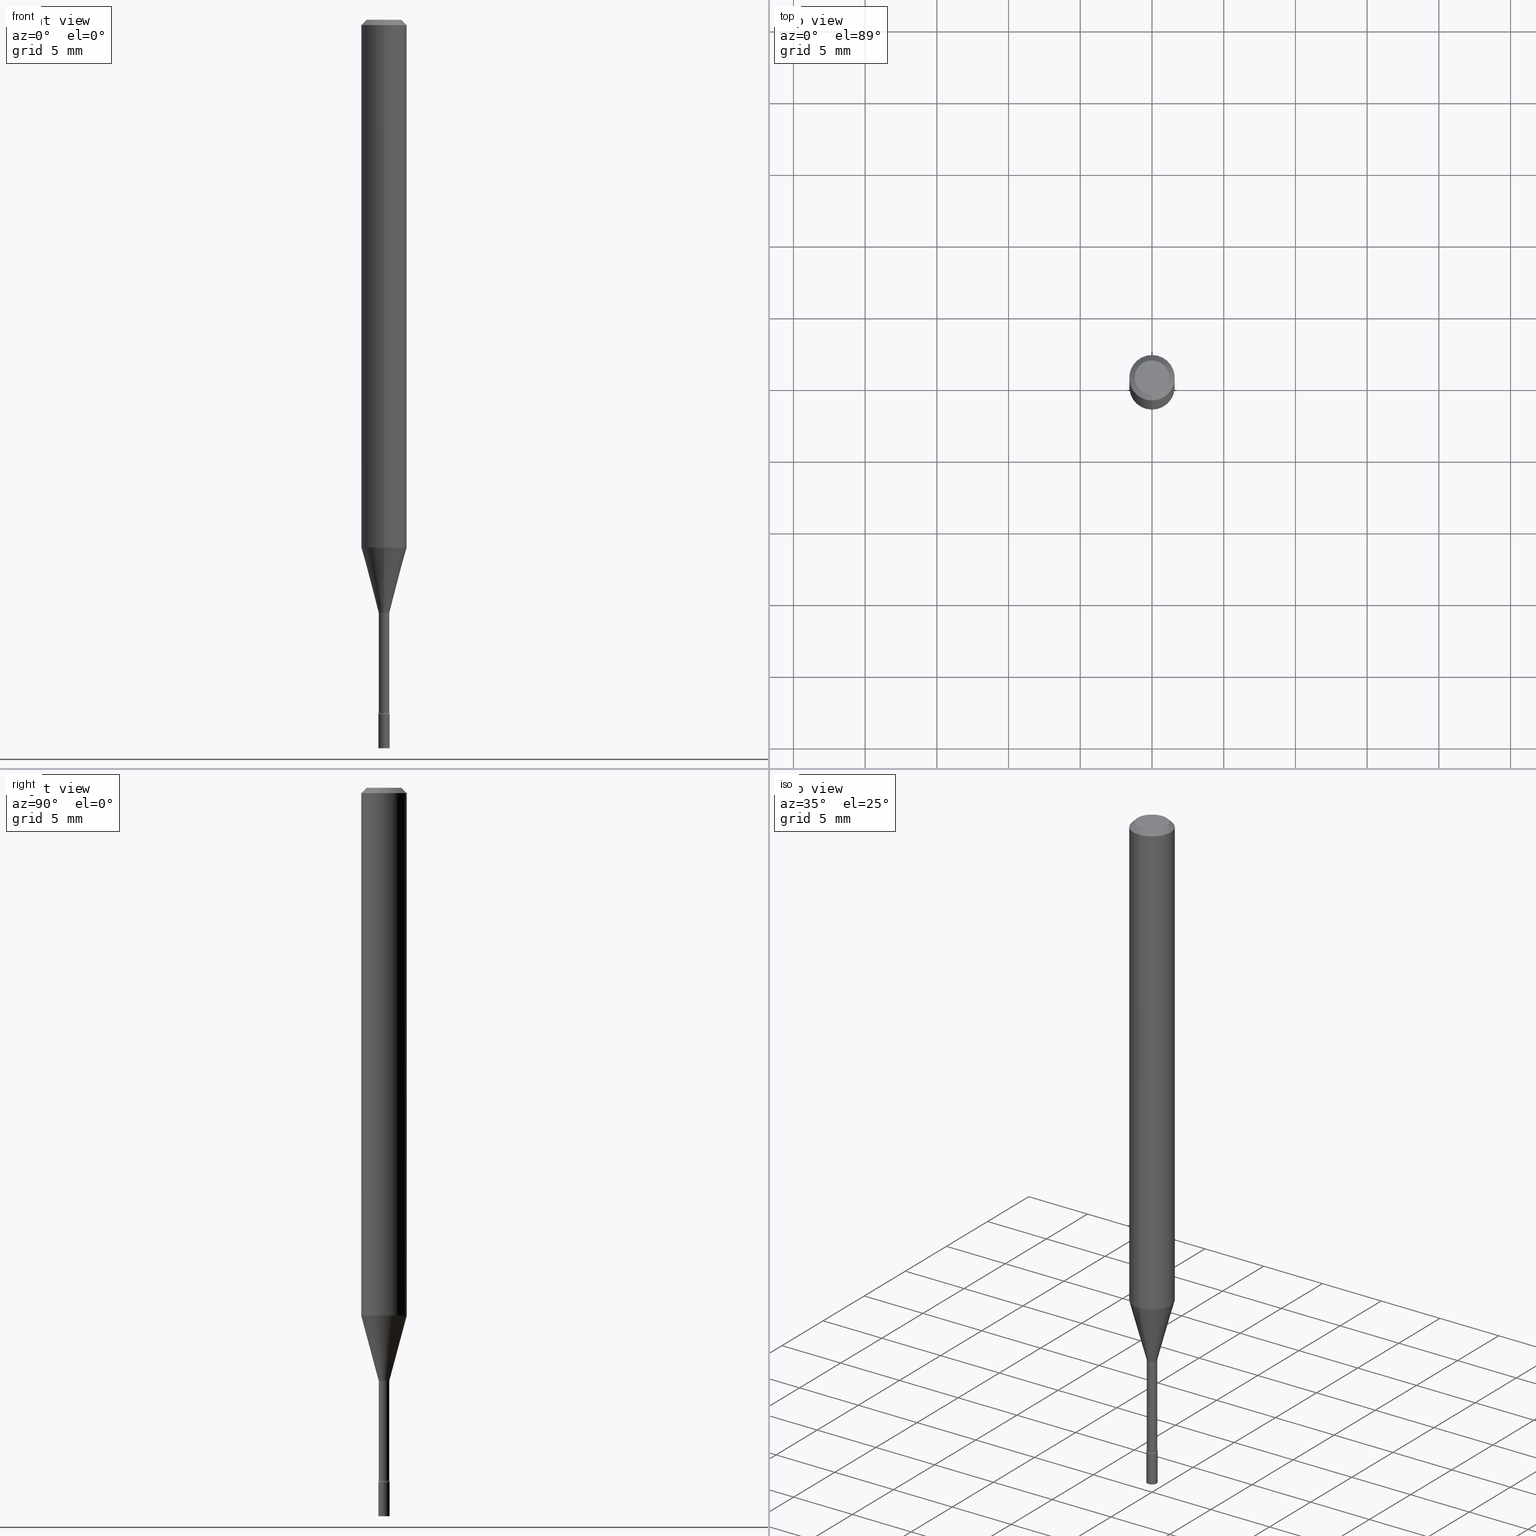
[diagram: canonical four-view strip — front | top / right | iso, engineering-drawing reading convention]
A machine part, canonical four-view strip (front | top / right | iso — engineering-drawing reading convention). The complete STEP part file that produces these views, byte-faithful:
ISO-10303-21;
HEADER;
FILE_DESCRIPTION (( 'STEP AP203' ),
    '1' );
FILE_NAME ('03486.STEP',
    '2024-03-08T21:30:43',
    ( '' ),
    ( '' ),
    'SwSTEP 2.0',
    'SolidWorks 2023',
    '' );
FILE_SCHEMA (( 'CONFIG_CONTROL_DESIGN' ));
ENDSEC;

DATA;
#1 = ORIENTED_EDGE ( 'NONE', *, *, #448, .T. ) ;
#2 = ADVANCED_FACE ( 'NONE', ( #519 ), #515, .T. ) ;
#3 = DATE_AND_TIME ( #452, #24 ) ;
#4 = DIRECTION ( 'NONE',  ( 1.000000000000000000, -7.105427357601001070E-15, 4.926315678976482219E-29 ) ) ;
#5 = DIRECTION ( 'NONE',  ( -2.445459087978587807E-29, 3.491495255868048836E-15, 1.000000000000000000 ) ) ;
#6 = AXIS2_PLACEMENT_3D ( 'NONE', #301, #458, #495 ) ;
#7 = AXIS2_PLACEMENT_3D ( 'NONE', #512, #317, #391 ) ;
#8 = PERSON_AND_ORGANIZATION_ROLE ( 'classification_officer' ) ;
#9 = DIRECTION ( 'NONE',  ( -1.000000000000000000, 6.982962677686265922E-15, -4.876176775795935793E-29 ) ) ;
#10 = COORDINATED_UNIVERSAL_TIME_OFFSET ( 5, 0, .BEHIND. ) ;
#11 = CIRCLE ( 'NONE', #241, 0.01455000000000001951 ) ;
#12 = CARTESIAN_POINT ( 'NONE',  ( 1.067590460480017694E-16, 0.01454999999999338246, -1.901746667724196316 ) ) ;
#13 = ADVANCED_FACE ( 'NONE', ( #232 ), #274, .T. ) ;
#14 = FACE_OUTER_BOUND ( 'NONE', #407, .T. ) ;
#15 = TOROIDAL_SURFACE ( 'NONE', #118, 0.02955000000000003804, 0.01500000000000001853 ) ;
#16 = DIRECTION ( 'NONE',  ( -2.445468806185136597E-29, 3.491481338843145583E-15, 1.000000000000000000 ) ) ;
#17 = ADVANCED_FACE ( 'NONE', ( #200 ), #240, .T. ) ;
#18 = DIRECTION ( 'NONE',  ( -2.445459087978587807E-29, 3.491495255868049230E-15, 1.000000000000000000 ) ) ;
#19 = VERTEX_POINT ( 'NONE', #37 ) ;
#20 = AXIS2_PLACEMENT_3D ( 'NONE', #377, #283, #122 ) ;
#21 = CARTESIAN_POINT ( 'NONE',  ( 4.663509013395054719E-29, -6.658254913173878091E-15, -1.906999999999999806 ) ) ;
#22 = CARTESIAN_POINT ( 'NONE',  ( 0.000000000000000000, 0.000000000000000000, 0.000000000000000000 ) ) ;
#23 = ADVANCED_FACE ( 'NONE', ( #308 ), #300, .F. ) ;
#24 = LOCAL_TIME ( 16, 30, 43.00000000000000000, #321 ) ;
#25 = ADVANCED_BREP_SHAPE_REPRESENTATION ( '03486', ( #151, #326, #86 ), #347 ) ;
#26 = DIRECTION ( 'NONE',  ( 1.000000000000000000, -6.982962677686238312E-15, 0.000000000000000000 ) ) ;
#27 = FACE_OUTER_BOUND ( 'NONE', #387, .T. ) ;
#28 = CC_DESIGN_PERSON_AND_ORGANIZATION_ASSIGNMENT ( #121, #125, ( #34 ) ) ;
#29 = AXIS2_PLACEMENT_3D ( 'NONE', #295, #98, #419 ) ;
#30 = PERSON_AND_ORGANIZATION_ROLE ( 'design_owner' ) ;
#31 = CYLINDRICAL_SURFACE ( 'NONE', #60, 0.06250000000000000000 ) ;
#32 = ORIENTED_EDGE ( 'NONE', *, *, #179, .T. ) ;
#33 = VERTEX_POINT ( 'NONE', #268 ) ;
#34 = PRODUCT_DEFINITION_FORMATION_WITH_SPECIFIED_SOURCE ( 'ANY', '', #493, .NOT_KNOWN. ) ;
#35 = CC_DESIGN_DATE_AND_TIME_ASSIGNMENT ( #449, #244, ( #63 ) ) ;
#36 = CARTESIAN_POINT ( 'NONE',  ( 3.986036657179344057E-29, -5.691049237614427224E-15, -1.629974787463811081 ) ) ;
#37 = CARTESIAN_POINT ( 'NONE',  ( 2.755524256971660979E-16, 0.01506111260565830626, -1.626092501787273159 ) ) ;
#38 = APPROVAL_STATUS ( 'not_yet_approved' ) ;
#39 = ORIENTED_EDGE ( 'NONE', *, *, #501, .F. ) ;
#40 = AXIS2_PLACEMENT_3D ( 'NONE', #318, #451, #80 ) ;
#41 = EDGE_CURVE ( 'NONE', #223, #259, #72, .T. ) ;
#42 = DIRECTION ( 'NONE',  ( 6.982962677686265922E-15, 1.000000000000000000, -3.483106191921935554E-15 ) ) ;
#43 = CARTESIAN_POINT ( 'NONE',  ( 4.650662153186051955E-29, -6.639913001566167862E-15, -1.901746667724196316 ) ) ;
#44 = EDGE_LOOP ( 'NONE', ( #292, #234, #1, #177 ) ) ;
#45 = PERSON_AND_ORGANIZATION_ROLE ( 'creator' ) ;
#46 = FACE_OUTER_BOUND ( 'NONE', #350, .T. ) ;
#47 = AXIS2_PLACEMENT_3D ( 'NONE', #77, #82, #42 ) ;
#48 = DIRECTION ( 'NONE',  ( 2.445459087978587807E-29, -3.491495255868048836E-15, -1.000000000000000000 ) ) ;
#49 = AXIS2_PLACEMENT_3D ( 'NONE', #478, #470, #192 ) ;
#50 = CARTESIAN_POINT ( 'NONE',  ( 1.101341240428622064E-16, 0.01549999999999334896, -1.906999999999999806 ) ) ;
#51 = CIRCLE ( 'NONE', #6, 0.06250000000000000000 ) ;
#52 = CARTESIAN_POINT ( 'NONE',  ( 0.01549999999999999989, -6.766490834678014468E-15, -1.906999999999999806 ) ) ;
#53 = ORIENTED_EDGE ( 'NONE', *, *, #310, .F. ) ;
#54 = ORIENTED_EDGE ( 'NONE', *, *, #376, .T. ) ;
#55 = DIRECTION ( 'NONE',  ( -6.982962677686266711E-15, -1.000000000000000000, 3.491495255868049625E-15 ) ) ;
#56 = ORIENTED_EDGE ( 'NONE', *, *, #372, .F. ) ;
#57 = APPROVAL_PERSON_ORGANIZATION ( #212, #158, #332 ) ;
#58 = DIRECTION ( 'NONE',  ( -6.982962677686262766E-15, -1.000000000000000000, 0.000000000000000000 ) ) ;
#59 = EDGE_LOOP ( 'NONE', ( #496, #107, #359, #155 ) ) ;
#60 = AXIS2_PLACEMENT_3D ( 'NONE', #191, #373, #453 ) ;
#61 = EDGE_CURVE ( 'NONE', #460, #259, #282, .T. ) ;
#62 = DIRECTION ( 'NONE',  ( -2.445459087978587807E-29, 3.491495255868049230E-15, 1.000000000000000000 ) ) ;
#63 = PRODUCT_DEFINITION ( 'UNKNOWN', '', #34, #454 ) ;
#64 = VERTEX_POINT ( 'NONE', #238 ) ;
#65 = DIRECTION ( 'NONE',  ( -2.445468806185136597E-29, 3.491481338843145583E-15, 1.000000000000000000 ) ) ;
#66 = EDGE_CURVE ( 'NONE', #479, #176, #228, .T. ) ;
#67 = CIRCLE ( 'NONE', #137, 0.01455000000000001951 ) ;
#68 = DIRECTION ( 'NONE',  ( -2.445459087978587807E-29, 3.491495255868049230E-15, 1.000000000000000000 ) ) ;
#69 = CARTESIAN_POINT ( 'NONE',  ( 0.000000000000000000, 0.000000000000000000, 0.000000000000000000 ) ) ;
#70 =( NAMED_UNIT ( * ) PLANE_ANGLE_UNIT ( ) SI_UNIT ( $, .RADIAN. ) );
#71 = EDGE_LOOP ( 'NONE', ( #198, #423, #488, #135 ) ) ;
#72 = LINE ( 'NONE', #434, #513 ) ;
#73 = ADVANCED_FACE ( 'NONE', ( #395 ), #243, .F. ) ;
#74 = CARTESIAN_POINT ( 'NONE',  ( -1.016021069602953434E-16, -0.01455000000000569380, -1.629974787463811081 ) ) ;
#75 = AXIS2_PLACEMENT_3D ( 'NONE', #463, #260, #94 ) ;
#76 = AXIS2_PLACEMENT_3D ( 'NONE', #188, #472, #276 ) ;
#77 = CARTESIAN_POINT ( 'NONE',  ( 3.668188631967889173E-31, -5.237242883802084840E-17, -0.01500000000000003067 ) ) ;
#78 = ORIENTED_EDGE ( 'NONE', *, *, #400, .F. ) ;
#79 = COORDINATED_UNIVERSAL_TIME_OFFSET ( 5, 0, .BEHIND. ) ;
#80 = DIRECTION ( 'NONE',  ( -6.982962677686266711E-15, -1.000000000000000000, 3.491495255868048836E-15 ) ) ;
#81 = ADVANCED_FACE ( 'NONE', ( #27 ), #31, .T. ) ;
#82 = DIRECTION ( 'NONE',  ( 2.445459087978587807E-29, -3.491495255868049230E-15, -1.000000000000000000 ) ) ;
#83 = AXIS2_PLACEMENT_3D ( 'NONE', #21, #336, #261 ) ;
#84 = CC_DESIGN_PERSON_AND_ORGANIZATION_ASSIGNMENT ( #403, #8, ( #150 ) ) ;
#85 = FACE_OUTER_BOUND ( 'NONE', #461, .T. ) ;
#86 = AXIS2_PLACEMENT_3D ( 'NONE', #22, #433, #184 ) ;
#87 = DIRECTION ( 'NONE',  ( -1.000000000000000000, 6.982962677686265922E-15, -4.883557194083112340E-29 ) ) ;
#88 = EDGE_LOOP ( 'NONE', ( #499, #325, #299, #302 ) ) ;
#89 = DIRECTION ( 'NONE',  ( 1.839019923739597554E-15, 0.2588190451025245697, 0.9659258262890670910 ) ) ;
#90 = ORIENTED_EDGE ( 'NONE', *, *, #517, .T. ) ;
#91 = EDGE_LOOP ( 'NONE', ( #500, #201, #100, #132 ) ) ;
#92 = CIRCLE ( 'NONE', #335, 0.04749999999999999362 ) ;
#93 = ORIENTED_EDGE ( 'NONE', *, *, #469, .T. ) ;
#94 = DIRECTION ( 'NONE',  ( -6.982962677686265922E-15, -1.000000000000000000, 3.491495255868048836E-15 ) ) ;
#95 = ORIENTED_EDGE ( 'NONE', *, *, #330, .T. ) ;
#96 = DIRECTION ( 'NONE',  ( 1.000000000000000000, -6.982962677686266711E-15, 4.876176775795935232E-29 ) ) ;
#97 = VERTEX_POINT ( 'NONE', #12 ) ;
#98 = DIRECTION ( 'NONE',  ( 1.000000000000000000, -7.105427357601001070E-15, 4.926315678976482219E-29 ) ) ;
#99 = DIRECTION ( 'NONE',  ( -2.445468806185136597E-29, 3.491481338843145583E-15, 1.000000000000000000 ) ) ;
#100 = ORIENTED_EDGE ( 'NONE', *, *, #186, .T. ) ;
#101 = ORIENTED_EDGE ( 'NONE', *, *, #66, .T. ) ;
#102 = PERSON_AND_ORGANIZATION ( #219, #319 ) ;
#103 = ADVANCED_FACE ( 'NONE', ( #246 ), #172, .T. ) ;
#104 = ORIENTED_EDGE ( 'NONE', *, *, #442, .T. ) ;
#105 = AXIS2_PLACEMENT_3D ( 'NONE', #36, #187, #516 ) ;
#106 = LINE ( 'NONE', #394, #333 ) ;
#107 = ORIENTED_EDGE ( 'NONE', *, *, #140, .T. ) ;
#108 = CC_DESIGN_DATE_AND_TIME_ASSIGNMENT ( #127, #284, ( #150 ) ) ;
#109 = AXIS2_PLACEMENT_3D ( 'NONE', #415, #426, #136 ) ;
#110 = ORIENTED_EDGE ( 'NONE', *, *, #41, .F. ) ;
#111 = ORIENTED_EDGE ( 'NONE', *, *, #477, .F. ) ;
#112 = DIRECTION ( 'NONE',  ( -2.445468806185136597E-29, 3.491481338843145583E-15, 1.000000000000000000 ) ) ;
#113 = DIRECTION ( 'NONE',  ( -6.982962677686265922E-15, -1.000000000000000000, 3.491495255868049230E-15 ) ) ;
#114 = EDGE_CURVE ( 'NONE', #97, #460, #457, .T. ) ;
#115 = DIRECTION ( 'NONE',  ( -2.445459087978587807E-29, 3.491495255868049230E-15, 1.000000000000000000 ) ) ;
#116 = APPROVAL_STATUS ( 'not_yet_approved' ) ;
#117 = FACE_OUTER_BOUND ( 'NONE', #369, .T. ) ;
#118 = AXIS2_PLACEMENT_3D ( 'NONE', #43, #286, #444 ) ;
#119 = ORIENTED_EDGE ( 'NONE', *, *, #363, .T. ) ;
#120 = CLOSED_SHELL ( 'NONE', ( #73, #257, #23, #156, #17, #174, #103, #81, #263, #163, #352, #216, #13, #271 ) ) ;
#121 = PERSON_AND_ORGANIZATION ( #219, #319 ) ;
#122 = DIRECTION ( 'NONE',  ( -6.982962677686266711E-15, -1.000000000000000000, 0.000000000000000000 ) ) ;
#123 = EDGE_CURVE ( 'NONE', #97, #223, #67, .T. ) ;
#124 = ORIENTED_EDGE ( 'NONE', *, *, #363, .F. ) ;
#125 = PERSON_AND_ORGANIZATION_ROLE ( 'design_supplier' ) ;
#126 = DIRECTION ( 'NONE',  ( 2.445459087978587807E-29, -3.491495255868049230E-15, -1.000000000000000000 ) ) ;
#127 = DATE_AND_TIME ( #364, #450 ) ;
#128 = CARTESIAN_POINT ( 'NONE',  ( 1.033839680530946418E-16, 0.01455000000000001084, -5.080125597288014936E-17 ) ) ;
#129 = AXIS2_PLACEMENT_3D ( 'NONE', #406, #115, #206 ) ;
#130 = LINE ( 'NONE', #345, #182 ) ;
#131 = ORIENTED_EDGE ( 'NONE', *, *, #140, .F. ) ;
#132 = ORIENTED_EDGE ( 'NONE', *, *, #346, .F. ) ;
#133 = CARTESIAN_POINT ( 'NONE',  ( 3.976542686389524880E-29, -5.677494255592872266E-15, -1.626092501787273159 ) ) ;
#134 = ORIENTED_EDGE ( 'NONE', *, *, #439, .T. ) ;
#135 = ORIENTED_EDGE ( 'NONE', *, *, #465, .T. ) ;
#136 = DIRECTION ( 'NONE',  ( -6.982962677686265922E-15, -1.000000000000000000, 3.491495255868049230E-15 ) ) ;
#137 = AXIS2_PLACEMENT_3D ( 'NONE', #250, #288, #165 ) ;
#138 = DIRECTION ( 'NONE',  ( -2.445459087978587807E-29, 3.491495255868048836E-15, 1.000000000000000000 ) ) ;
#139 = ORIENTED_EDGE ( 'NONE', *, *, #114, .T. ) ;
#140 = EDGE_CURVE ( 'NONE', #19, #460, #272, .T. ) ;
#141 = APPLICATION_CONTEXT ( 'configuration controlled 3d designs of mechanical parts and assemblies' ) ;
#142 = ORIENTED_EDGE ( 'NONE', *, *, #179, .F. ) ;
#143 = CARTESIAN_POINT ( 'NONE',  ( 4.663490480775166540E-29, -6.658281452940369696E-15, -1.906999999999999806 ) ) ;
#144 = CC_DESIGN_SECURITY_CLASSIFICATION ( #150, ( #34 ) ) ;
#145 = CC_DESIGN_PERSON_AND_ORGANIZATION_ASSIGNMENT ( #102, #30, ( #493 ) ) ;
#146 = CIRCLE ( 'NONE', #83, 0.01549999999999999989 ) ;
#147 = VERTEX_POINT ( 'NONE', #245 ) ;
#148 = MECHANICAL_CONTEXT ( 'NONE', #141, 'mechanical' ) ;
#149 = DIRECTION ( 'NONE',  ( -2.445459087978587807E-29, 3.491495255868049230E-15, 1.000000000000000000 ) ) ;
#150 = SECURITY_CLASSIFICATION ( '', '', #166 ) ;
#151 = MANIFOLD_SOLID_BREP ( 'Body-Move/Copy2[1]', #229 ) ;
#152 = DIRECTION ( 'NONE',  ( -6.982962677686265922E-15, -1.000000000000000000, 0.000000000000000000 ) ) ;
#153 = VERTEX_POINT ( 'NONE', #210 ) ;
#154 = VECTOR ( 'NONE', #138, 39.37007874015748143 ) ;
#155 = ORIENTED_EDGE ( 'NONE', *, *, #330, .F. ) ;
#156 = ADVANCED_FACE ( 'NONE', ( #481 ), #370, .T. ) ;
#157 = CARTESIAN_POINT ( 'NONE',  ( 4.890937612370273194E-29, -6.982962677686291165E-15, -2.000000000000000000 ) ) ;
#158 = APPROVAL ( #38, 'UNSPECIFIED' ) ;
#159 = CC_DESIGN_APPROVAL ( #233, ( #34 ) ) ;
#160 = SHAPE_DEFINITION_REPRESENTATION ( #202, #25 ) ;
#161 = FACE_OUTER_BOUND ( 'NONE', #169, .T. ) ;
#162 = COORDINATED_UNIVERSAL_TIME_OFFSET ( 5, 0, .BEHIND. ) ;
#163 = ADVANCED_FACE ( 'NONE', ( #161 ), #492, .F. ) ;
#164 = CIRCLE ( 'NONE', #456, 0.04749999999999999362 ) ;
#165 = DIRECTION ( 'NONE',  ( -6.982962677686265922E-15, -1.000000000000000000, 0.000000000000000000 ) ) ;
#166 = SECURITY_CLASSIFICATION_LEVEL ( 'unclassified' ) ;
#167 = CYLINDRICAL_SURFACE ( 'NONE', #40, 0.01455000000000001084 ) ;
#168 = ORIENTED_EDGE ( 'NONE', *, *, #289, .F. ) ;
#169 = EDGE_LOOP ( 'NONE', ( #134, #337 ) ) ;
#170 = CARTESIAN_POINT ( 'NONE',  ( 3.543588001027327383E-29, -5.059344789351957682E-15, -1.449048163777072684 ) ) ;
#171 = DIRECTION ( 'NONE',  ( -2.445459087978587807E-29, 3.491495255868049230E-15, 1.000000000000000000 ) ) ;
#172 = CONICAL_SURFACE ( 'NONE', #20, 0.01506111260566398227, 0.2617993877991499074 ) ;
#173 = AXIS2_PLACEMENT_3D ( 'NONE', #231, #99, #307 ) ;
#174 = ADVANCED_FACE ( 'NONE', ( #85 ), #471, .T. ) ;
#175 = CARTESIAN_POINT ( 'NONE',  ( 3.668188631967889173E-31, -5.237242883802084840E-17, -0.01500000000000003067 ) ) ;
#176 = VERTEX_POINT ( 'NONE', #404 ) ;
#177 = ORIENTED_EDGE ( 'NONE', *, *, #467, .F. ) ;
#178 = DIRECTION ( 'NONE',  ( -6.982962677686265922E-15, -1.000000000000000000, 0.000000000000000000 ) ) ;
#179 = EDGE_CURVE ( 'NONE', #33, #19, #402, .T. ) ;
#180 = LINE ( 'NONE', #498, #220 ) ;
#181 = ORIENTED_EDGE ( 'NONE', *, *, #448, .F. ) ;
#182 = VECTOR ( 'NONE', #506, 39.37007874015748143 ) ;
#183 = FACE_OUTER_BOUND ( 'NONE', #401, .T. ) ;
#184 = DIRECTION ( 'NONE',  ( 1.000000000000000000, 0.000000000000000000, 0.000000000000000000 ) ) ;
#185 = ORIENTED_EDGE ( 'NONE', *, *, #305, .F. ) ;
#186 = EDGE_CURVE ( 'NONE', #479, #413, #279, .T. ) ;
#187 = DIRECTION ( 'NONE',  ( -2.445459087978587807E-29, 3.491495255868049230E-15, 1.000000000000000000 ) ) ;
#188 = CARTESIAN_POINT ( 'NONE',  ( 4.650662153186051955E-29, -6.639913001566167862E-15, -1.901746667724196316 ) ) ;
#189 = CIRCLE ( 'NONE', #427, 0.01500000000000002373 ) ;
#190 = PERSON_AND_ORGANIZATION ( #219, #319 ) ;
#191 = CARTESIAN_POINT ( 'NONE',  ( 0.000000000000000000, 0.000000000000000000, 0.000000000000000000 ) ) ;
#192 = DIRECTION ( 'NONE',  ( -6.982962677686267499E-15, -1.000000000000000000, 0.000000000000000000 ) ) ;
#193 = CARTESIAN_POINT ( 'NONE',  ( 3.986052497610997470E-29, -5.691026553214718169E-15, -1.629974787463811081 ) ) ;
#194 = AXIS2_PLACEMENT_3D ( 'NONE', #264, #112, #26 ) ;
#195 = APPLICATION_CONTEXT ( 'configuration controlled 3d designs of mechanical parts and assemblies' ) ;
#196 = FACE_OUTER_BOUND ( 'NONE', #518, .T. ) ;
#197 = ADVANCED_FACE ( 'NONE', ( #117 ), #447, .T. ) ;
#198 = ORIENTED_EDGE ( 'NONE', *, *, #376, .F. ) ;
#199 = AXIS2_PLACEMENT_3D ( 'NONE', #252, #16, #96 ) ;
#200 = FACE_OUTER_BOUND ( 'NONE', #253, .T. ) ;
#201 = ORIENTED_EDGE ( 'NONE', *, *, #477, .T. ) ;
#202 = PRODUCT_DEFINITION_SHAPE ( 'NONE', 'NONE',  #63 ) ;
#203 = DIMENSIONAL_EXPONENTS ( 1.000000000000000000, 0.000000000000000000, 0.000000000000000000, 0.000000000000000000, 0.000000000000000000, 0.000000000000000000, 0.000000000000000000 ) ;
#204 = DIRECTION ( 'NONE',  ( -2.445468806185136877E-29, 3.491481338843145188E-15, 1.000000000000000000 ) ) ;
#205 = PERSON_AND_ORGANIZATION ( #219, #319 ) ;
#206 = DIRECTION ( 'NONE',  ( -6.982962677686266711E-15, -1.000000000000000000, 0.000000000000000000 ) ) ;
#207 = ORIENTED_EDGE ( 'NONE', *, *, #66, .F. ) ;
#208 = CALENDAR_DATE ( 2024, 8, 3 ) ;
#209 = AXIS2_PLACEMENT_3D ( 'NONE', #483, #251, #334 ) ;
#210 = CARTESIAN_POINT ( 'NONE',  ( -3.773273898774340269E-16, -0.04749999999999999362, 1.369327747845462916E-16 ) ) ;
#211 = ORIENTED_EDGE ( 'NONE', *, *, #310, .T. ) ;
#212 = PERSON_AND_ORGANIZATION ( #219, #319 ) ;
#213 = CARTESIAN_POINT ( 'NONE',  ( 0.01549999999999999989, -1.082359215041371286E-16, 7.558074002483699918E-31 ) ) ;
#214 = APPROVAL_PERSON_ORGANIZATION ( #205, #233, #371 ) ;
#215 = CARTESIAN_POINT ( 'NONE',  ( -1.016021069602887860E-16, -0.01455000000000666004, -1.901746667724196316 ) ) ;
#216 = ADVANCED_FACE ( 'NONE', ( #46 ), #15, .F. ) ;
#217 = VERTEX_POINT ( 'NONE', #368 ) ;
#218 = CARTESIAN_POINT ( 'NONE',  ( -2.063465471255892799E-16, -0.02955000000000568630, -1.629974787463811081 ) ) ;
#219 = PERSON ( 'UNSPECIFIED', 'UNSPECIFIED', 'UNSPECIFIED', ('UNSPECIFIED'), ('UNSPECIFIED'), ('UNSPECIFIED') ) ;
#220 = VECTOR ( 'NONE', #293, 39.37007874015748143 ) ;
#221 = PLANE ( 'NONE',  #75 ) ;
#222 = ORIENTED_EDGE ( 'NONE', *, *, #186, .F. ) ;
#223 = VERTEX_POINT ( 'NONE', #215 ) ;
#224 = EDGE_CURVE ( 'NONE', #147, #374, #315, .T. ) ;
#225 = LINE ( 'NONE', #297, #410 ) ;
#226 = ORIENTED_EDGE ( 'NONE', *, *, #517, .F. ) ;
#227 = CARTESIAN_POINT ( 'NONE',  ( -1.082359215040905611E-16, -0.01550000000000666643, -1.906999999999999806 ) ) ;
#228 = CIRCLE ( 'NONE', #290, 0.01549999999999999989 ) ;
#229 = CLOSED_SHELL ( 'NONE', ( #2, #494, #338, #197 ) ) ;
#230 = LINE ( 'NONE', #466, #393 ) ;
#231 = CARTESIAN_POINT ( 'NONE',  ( 4.663509013395054719E-29, -6.658254913173878091E-15, -1.906999999999999806 ) ) ;
#232 = FACE_OUTER_BOUND ( 'NONE', #88, .T. ) ;
#233 = APPROVAL ( #116, 'UNSPECIFIED' ) ;
#234 = ORIENTED_EDGE ( 'NONE', *, *, #400, .T. ) ;
#235 = AXIS2_PLACEMENT_3D ( 'NONE', #249, #48, #322 ) ;
#236 = CARTESIAN_POINT ( 'NONE',  ( 1.033839680531411352E-16, 0.01454999999999430881, -1.629974787463811081 ) ) ;
#237 = AXIS2_PLACEMENT_3D ( 'NONE', #69, #149, #311 ) ;
#238 = CARTESIAN_POINT ( 'NONE',  ( 3.840629472727447874E-16, 0.04749999999999999362, -1.947592745229183872E-16 ) ) ;
#239 = CIRCLE ( 'NONE', #49, 0.01500000000000001853 ) ;
#240 = CYLINDRICAL_SURFACE ( 'NONE', #464, 0.06250000000000000000 ) ;
#241 = AXIS2_PLACEMENT_3D ( 'NONE', #430, #275, #514 ) ;
#242 = DIRECTION ( 'NONE',  ( -2.445459087978587807E-29, 3.491495255868049230E-15, 1.000000000000000000 ) ) ;
#243 = TOROIDAL_SURFACE ( 'NONE', #418, 0.02954999999999999641, 0.01500000000000001853 ) ;
#244 = DATE_TIME_ROLE ( 'creation_date' ) ;
#245 = CARTESIAN_POINT ( 'NONE',  ( -4.364351673553563186E-16, -0.06250000000000507927, -1.449048163777072240 ) ) ;
#246 = FACE_OUTER_BOUND ( 'NONE', #504, .T. ) ;
#247 = CC_DESIGN_PERSON_AND_ORGANIZATION_ASSIGNMENT ( #491, #45, ( #34 ) ) ;
#248 = PERSON_AND_ORGANIZATION ( #219, #319 ) ;
#249 = CARTESIAN_POINT ( 'NONE',  ( 3.316907271900976096E-16, 0.04749999999999999362, -1.803026495883253510E-16 ) ) ;
#250 = CARTESIAN_POINT ( 'NONE',  ( 4.650643671619131507E-29, -6.639939468221903251E-15, -1.901746667724196316 ) ) ;
#251 = DIRECTION ( 'NONE',  ( -2.445459087978587807E-29, 3.491495255868049230E-15, 1.000000000000000000 ) ) ;
#252 = CARTESIAN_POINT ( 'NONE',  ( 0.000000000000000000, 0.000000000000000000, 0.000000000000000000 ) ) ;
#253 = EDGE_LOOP ( 'NONE', ( #429, #414, #124, #355 ) ) ;
#254 = DIRECTION ( 'NONE',  ( -6.982962677686266711E-15, -1.000000000000000000, 0.000000000000000000 ) ) ;
#255 = CIRCLE ( 'NONE', #29, 0.01500000000000001853 ) ;
#256 = VERTEX_POINT ( 'NONE', #329 ) ;
#257 = ADVANCED_FACE ( 'NONE', ( #14 ), #167, .T. ) ;
#258 = CYLINDRICAL_SURFACE ( 'NONE', #199, 0.01549999999999999989 ) ;
#259 = VERTEX_POINT ( 'NONE', #74 ) ;
#260 = DIRECTION ( 'NONE',  ( -2.445459087978587807E-29, 3.491495255868048836E-15, 1.000000000000000000 ) ) ;
#261 = DIRECTION ( 'NONE',  ( 1.000000000000000000, -6.982962677686238312E-15, 0.000000000000000000 ) ) ;
#262 = AXIS2_PLACEMENT_3D ( 'NONE', #133, #62, #254 ) ;
#263 = ADVANCED_FACE ( 'NONE', ( #490 ), #381, .T. ) ;
#264 = CARTESIAN_POINT ( 'NONE',  ( 4.890937612370273194E-29, -6.982962677686291165E-15, -2.000000000000000000 ) ) ;
#265 = DIRECTION ( 'NONE',  ( -2.445459087978587807E-29, 3.491495255868049230E-15, 1.000000000000000000 ) ) ;
#266 = APPLICATION_PROTOCOL_DEFINITION ( 'international standard', 'config_control_design', 1994, #195 ) ;
#267 = PRODUCT_RELATED_PRODUCT_CATEGORY ( 'detail', '', ( #493 ) ) ;
#268 = CARTESIAN_POINT ( 'NONE',  ( -1.051711872097419819E-16, -0.01506111260566966002, -1.626092501787273159 ) ) ;
#269 = DIRECTION ( 'NONE',  ( -2.438088387897960049E-29, 3.491481338843145188E-15, 1.000000000000000000 ) ) ;
#270 = DIRECTION ( 'NONE',  ( 1.000000000000000000, -6.982962677686238312E-15, 0.000000000000000000 ) ) ;
#271 = ADVANCED_FACE ( 'NONE', ( #459 ), #343, .F. ) ;
#272 = CIRCLE ( 'NONE', #511, 0.01500000000000001506 ) ;
#273 = CARTESIAN_POINT ( 'NONE',  ( 3.668188631967889173E-31, -5.237242883802084840E-17, -0.01500000000000003067 ) ) ;
#274 = CYLINDRICAL_SURFACE ( 'NONE', #237, 0.01455000000000001084 ) ;
#275 = DIRECTION ( 'NONE',  ( -2.445459087978587807E-29, 3.491495255868049230E-15, 1.000000000000000000 ) ) ;
#276 = DIRECTION ( 'NONE',  ( -6.982962677686265922E-15, -1.000000000000000000, 3.491495255868049625E-15 ) ) ;
#277 = CALENDAR_DATE ( 2024, 8, 3 ) ;
#278 = EDGE_CURVE ( 'NONE', #374, #392, #422, .T. ) ;
#279 = LINE ( 'NONE', #213, #361 ) ;
#280 = AXIS2_PLACEMENT_3D ( 'NONE', #412, #324, #9 ) ;
#281 = COORDINATED_UNIVERSAL_TIME_OFFSET ( 5, 0, .BEHIND. ) ;
#282 = CIRCLE ( 'NONE', #420, 0.01455000000000000217 ) ;
#283 = DIRECTION ( 'NONE',  ( -2.445459087978587807E-29, 3.491495255868049230E-15, 1.000000000000000000 ) ) ;
#284 = DATE_TIME_ROLE ( 'classification_date' ) ;
#285 = CIRCLE ( 'NONE', #327, 0.06250000000000000000 ) ;
#286 = DIRECTION ( 'NONE',  ( -2.445459087978587807E-29, 3.491495255868049230E-15, 1.000000000000000000 ) ) ;
#287 = APPROVAL_ROLE ( '' ) ;
#288 = DIRECTION ( 'NONE',  ( -2.445459087978587807E-29, 3.491495255868049230E-15, 1.000000000000000000 ) ) ;
#289 = EDGE_CURVE ( 'NONE', #374, #147, #51, .T. ) ;
#290 = AXIS2_PLACEMENT_3D ( 'NONE', #157, #65, #270 ) ;
#291 = CARTESIAN_POINT ( 'NONE',  ( 2.099653784171493922E-16, 0.02954999999999430652, -1.629974787463811081 ) ) ;
#292 = ORIENTED_EDGE ( 'NONE', *, *, #123, .F. ) ;
#293 = DIRECTION ( 'NONE',  ( 4.937700262164548042E-15, 0.7071067811865451302, -0.7071067811865499042 ) ) ;
#294 = VERTEX_POINT ( 'NONE', #50 ) ;
#295 = CARTESIAN_POINT ( 'NONE',  ( 2.099653784171563441E-16, 0.02954999999999339752, -1.901746667724196316 ) ) ;
#296 = ORIENTED_EDGE ( 'NONE', *, *, #278, .F. ) ;
#297 = CARTESIAN_POINT ( 'NONE',  ( 1.070156415442339207E-16, 0.01506111260565830626, -1.626092501787273159 ) ) ;
#298 = VECTOR ( 'NONE', #5, 39.37007874015748143 ) ;
#299 = ORIENTED_EDGE ( 'NONE', *, *, #41, .T. ) ;
#300 = TOROIDAL_SURFACE ( 'NONE', #76, 0.02955000000000003804, 0.01500000000000001853 ) ;
#301 = CARTESIAN_POINT ( 'NONE',  ( 3.543588001027327383E-29, -5.059344789351957682E-15, -1.449048163777072684 ) ) ;
#302 = ORIENTED_EDGE ( 'NONE', *, *, #61, .F. ) ;
#303 = CC_DESIGN_APPROVAL ( #320, ( #63 ) ) ;
#304 = DIRECTION ( 'NONE',  ( -2.445468806185136877E-29, 3.491481338843145188E-15, 1.000000000000000000 ) ) ;
#305 = EDGE_CURVE ( 'NONE', #153, #64, #92, .T. ) ;
#306 = CARTESIAN_POINT ( 'NONE',  ( 4.663490480775166540E-29, -6.658281452940369696E-15, -1.906999999999999806 ) ) ;
#307 = DIRECTION ( 'NONE',  ( 1.000000000000000000, -6.982962677686238312E-15, 0.000000000000000000 ) ) ;
#308 = FACE_OUTER_BOUND ( 'NONE', #44, .T. ) ;
#309 = APPROVAL_STATUS ( 'not_yet_approved' ) ;
#310 = EDGE_CURVE ( 'NONE', #19, #374, #225, .T. ) ;
#311 = DIRECTION ( 'NONE',  ( -6.982962677686266711E-15, -1.000000000000000000, 3.491495255868048836E-15 ) ) ;
#312 = LENGTH_MEASURE_WITH_UNIT ( LENGTH_MEASURE( 0.02539999999999999897 ), #396 );
#313 = ORIENTED_EDGE ( 'NONE', *, *, #469, .F. ) ;
#314 = AXIS2_PLACEMENT_3D ( 'NONE', #306, #68, #152 ) ;
#315 = CIRCLE ( 'NONE', #486, 0.06250000000000000000 ) ;
#316 = DIRECTION ( 'NONE',  ( -6.982962677686266711E-15, -1.000000000000000000, 3.491495255868049625E-15 ) ) ;
#317 = DIRECTION ( 'NONE',  ( -2.445468806185136597E-29, 3.491481338843145583E-15, 1.000000000000000000 ) ) ;
#318 = CARTESIAN_POINT ( 'NONE',  ( 0.000000000000000000, 0.000000000000000000, 0.000000000000000000 ) ) ;
#319 = ORGANIZATION ( 'UNSPECIFIED', 'UNSPECIFIED', '' ) ;
#320 = APPROVAL ( #309, 'UNSPECIFIED' ) ;
#321 = COORDINATED_UNIVERSAL_TIME_OFFSET ( 5, 0, .BEHIND. ) ;
#322 = DIRECTION ( 'NONE',  ( 6.982962677686265922E-15, 1.000000000000000000, -3.491495255868048836E-15 ) ) ;
#323 = AXIS2_PLACEMENT_3D ( 'NONE', #409, #126, #365 ) ;
#324 = DIRECTION ( 'NONE',  ( 2.438088387897960049E-29, -3.491481338843145188E-15, -1.000000000000000000 ) ) ;
#325 = ORIENTED_EDGE ( 'NONE', *, *, #123, .T. ) ;
#326 = MANIFOLD_SOLID_BREP ( 'Body-Move/Copy2[2]', #120 ) ;
#327 = AXIS2_PLACEMENT_3D ( 'NONE', #273, #349, #473 ) ;
#328 = APPROVAL_DATE_TIME ( #443, #158 ) ;
#329 = CARTESIAN_POINT ( 'NONE',  ( -0.01549999999999999989, -6.710474671387268213E-15, -1.906999999999999806 ) ) ;
#330 = EDGE_CURVE ( 'NONE', #33, #259, #189, .T. ) ;
#331 = AXIS2_PLACEMENT_3D ( 'NONE', #510, #269, #435 ) ;
#332 = APPROVAL_ROLE ( '' ) ;
#333 = VECTOR ( 'NONE', #390, 39.37007874015748143 ) ;
#334 = DIRECTION ( 'NONE',  ( -6.982962677686266711E-15, -1.000000000000000000, 0.000000000000000000 ) ) ;
#335 = AXIS2_PLACEMENT_3D ( 'NONE', #508, #385, #55 ) ;
#336 = DIRECTION ( 'NONE',  ( -2.445468806185136597E-29, 3.491481338843145583E-15, 1.000000000000000000 ) ) ;
#337 = ORIENTED_EDGE ( 'NONE', *, *, #305, .T. ) ;
#338 = ADVANCED_FACE ( 'NONE', ( #384 ), #258, .T. ) ;
#339 = DIRECTION ( 'NONE',  ( -2.445459087978587807E-29, 3.491495255868049230E-15, 1.000000000000000000 ) ) ;
#340 = CC_DESIGN_APPROVAL ( #158, ( #150 ) ) ;
#341 = LINE ( 'NONE', #502, #154 ) ;
#342 = CARTESIAN_POINT ( 'NONE',  ( 4.440892098500978191E-16, 0.06249999999999492767, -1.449048163777072906 ) ) ;
#343 = TOROIDAL_SURFACE ( 'NONE', #109, 0.02954999999999999641, 0.01500000000000001853 ) ;
#344 = VERTEX_POINT ( 'NONE', #227 ) ;
#345 = CARTESIAN_POINT ( 'NONE',  ( -4.287811248607203282E-16, -0.06250000000000005551, -0.01499999999999981209 ) ) ;
#346 = EDGE_CURVE ( 'NONE', #256, #413, #146, .T. ) ;
#347 =( GEOMETRIC_REPRESENTATION_CONTEXT ( 3 ) GLOBAL_UNCERTAINTY_ASSIGNED_CONTEXT ( ( #398 ) ) GLOBAL_UNIT_ASSIGNED_CONTEXT ( ( #353, #70, #358 ) ) REPRESENTATION_CONTEXT ( 'NONE', 'WORKASPACE' ) );
#348 = APPLICATION_PROTOCOL_DEFINITION ( 'international standard', 'config_control_design', 1994, #141 ) ;
#349 = DIRECTION ( 'NONE',  ( -2.445459087978587807E-29, 3.491495255868049230E-15, 1.000000000000000000 ) ) ;
#350 = EDGE_LOOP ( 'NONE', ( #78, #226, #455, #441 ) ) ;
#351 = CIRCLE ( 'NONE', #262, 0.01506111260566398227 ) ;
#352 = ADVANCED_FACE ( 'NONE', ( #183 ), #221, .F. ) ;
#353 =( CONVERSION_BASED_UNIT ( 'INCH', #312 ) LENGTH_UNIT ( ) NAMED_UNIT ( #203 ) );
#354 = ORIENTED_EDGE ( 'NONE', *, *, #224, .F. ) ;
#355 = ORIENTED_EDGE ( 'NONE', *, *, #424, .F. ) ;
#356 = CARTESIAN_POINT ( 'NONE',  ( 0.01549999999999999989, -7.091198599190427542E-15, -2.000000000000000000 ) ) ;
#357 = ORIENTED_EDGE ( 'NONE', *, *, #289, .T. ) ;
#358 =( NAMED_UNIT ( * ) SI_UNIT ( $, .STERADIAN. ) SOLID_ANGLE_UNIT ( ) );
#359 = ORIENTED_EDGE ( 'NONE', *, *, #61, .T. ) ;
#360 = ORIENTED_EDGE ( 'NONE', *, *, #417, .F. ) ;
#361 = VECTOR ( 'NONE', #204, 39.37007874015748143 ) ;
#362 = DIRECTION ( 'NONE',  ( -2.445459087978587807E-29, 3.491495255868048836E-15, 1.000000000000000000 ) ) ;
#363 = EDGE_CURVE ( 'NONE', #217, #392, #485, .T. ) ;
#364 = CALENDAR_DATE ( 2024, 8, 3 ) ;
#365 = DIRECTION ( 'NONE',  ( 6.982962677686265922E-15, 1.000000000000000000, -3.483106191921935554E-15 ) ) ;
#366 = ORIENTED_EDGE ( 'NONE', *, *, #442, .F. ) ;
#367 = PERSON_AND_ORGANIZATION_ROLE ( 'creator' ) ;
#368 = CARTESIAN_POINT ( 'NONE',  ( -4.364351673553912750E-16, -0.06250000000000005551, -0.01499999999999981209 ) ) ;
#369 = EDGE_LOOP ( 'NONE', ( #207, #111 ) ) ;
#370 = CONICAL_SURFACE ( 'NONE', #47, 0.06250000000000000000, 0.7853981633974483900 ) ;
#371 = APPROVAL_ROLE ( '' ) ;
#372 = EDGE_CURVE ( 'NONE', #64, #392, #180, .T. ) ;
#373 = DIRECTION ( 'NONE',  ( -2.445459087978587807E-29, 3.491495255868049230E-15, 1.000000000000000000 ) ) ;
#374 = VERTEX_POINT ( 'NONE', #342 ) ;
#375 = CALENDAR_DATE ( 2024, 8, 3 ) ;
#376 = EDGE_CURVE ( 'NONE', #153, #217, #130, .T. ) ;
#377 = CARTESIAN_POINT ( 'NONE',  ( 3.976542686389524880E-29, -5.677494255592872266E-15, -1.626092501787273159 ) ) ;
#378 = LOCAL_TIME ( 16, 30, 43.00000000000000000, #281 ) ;
#379 = DIRECTION ( 'NONE',  ( -2.445459087978587807E-29, 3.491495255868049230E-15, 1.000000000000000000 ) ) ;
#380 = EDGE_CURVE ( 'NONE', #19, #33, #351, .T. ) ;
#381 = CONICAL_SURFACE ( 'NONE', #323, 0.06250000000000000000, 0.7853981633974483900 ) ;
#382 = DIRECTION ( 'NONE',  ( -2.445459087978587807E-29, 3.491495255868048836E-15, 1.000000000000000000 ) ) ;
#383 = DIRECTION ( 'NONE',  ( -6.982962677686265922E-15, -1.000000000000000000, 3.483106191921935554E-15 ) ) ;
#384 = FACE_OUTER_BOUND ( 'NONE', #91, .T. ) ;
#385 = DIRECTION ( 'NONE',  ( -2.445459087978587807E-29, 3.491495255868049230E-15, 1.000000000000000000 ) ) ;
#386 = AXIS2_PLACEMENT_3D ( 'NONE', #143, #18, #178 ) ;
#387 = EDGE_LOOP ( 'NONE', ( #296, #357, #438, #421 ) ) ;
#388 = CARTESIAN_POINT ( 'NONE',  ( 7.070616965559682439E-46, -1.009504747499907079E-31, -2.891324986918607864E-17 ) ) ;
#389 = CIRCLE ( 'NONE', #194, 0.01549999999999999989 ) ;
#390 = DIRECTION ( 'NONE',  ( -1.807323732225327773E-15, -0.2588190451025178529, 0.9659258262890690894 ) ) ;
#391 = DIRECTION ( 'NONE',  ( 1.000000000000000000, -6.982962677686266711E-15, 4.876176775795935232E-29 ) ) ;
#392 = VERTEX_POINT ( 'NONE', #468 ) ;
#393 = VECTOR ( 'NONE', #304, 39.37007874015748143 ) ;
#394 = CARTESIAN_POINT ( 'NONE',  ( -1.051711872097419819E-16, -0.01506111260566966002, -1.626092501787273159 ) ) ;
#395 = FACE_OUTER_BOUND ( 'NONE', #59, .T. ) ;
#396 =( LENGTH_UNIT ( ) NAMED_UNIT ( * ) SI_UNIT ( $, .METRE. ) );
#397 = DIRECTION ( 'NONE',  ( -2.445459087978587807E-29, 3.491495255868049230E-15, 1.000000000000000000 ) ) ;
#398 = UNCERTAINTY_MEASURE_WITH_UNIT (LENGTH_MEASURE( 1.000000000000000082E-05 ), #353, 'distance_accuracy_value', 'NONE');
#399 = DATE_AND_TIME ( #277, #509 ) ;
#400 = EDGE_CURVE ( 'NONE', #97, #294, #255, .T. ) ;
#401 = EDGE_LOOP ( 'NONE', ( #360, #181 ) ) ;
#402 = CIRCLE ( 'NONE', #209, 0.01506111260566398227 ) ;
#403 = PERSON_AND_ORGANIZATION ( #219, #319 ) ;
#404 = CARTESIAN_POINT ( 'NONE',  ( -0.01549999999999999989, -6.710474671387268213E-15, -2.000000000000000000 ) ) ;
#405 = CC_DESIGN_PERSON_AND_ORGANIZATION_ASSIGNMENT ( #248, #367, ( #63 ) ) ;
#406 = CARTESIAN_POINT ( 'NONE',  ( 3.976542686389524880E-29, -5.677494255592872266E-15, -1.626092501787273159 ) ) ;
#407 = EDGE_LOOP ( 'NONE', ( #90, #139, #39, #110 ) ) ;
#408 = APPROVAL_DATE_TIME ( #399, #233 ) ;
#409 = CARTESIAN_POINT ( 'NONE',  ( 3.668188631967889173E-31, -5.237242883802084840E-17, -0.01500000000000003067 ) ) ;
#410 = VECTOR ( 'NONE', #89, 39.37007874015748854 ) ;
#411 = DIRECTION ( 'NONE',  ( 7.105427357601001859E-15, 1.000000000000000000, 0.000000000000000000 ) ) ;
#412 = CARTESIAN_POINT ( 'NONE',  ( 1.082359215041860133E-16, 0.01549999999999301589, -2.000000000000000000 ) ) ;
#413 = VERTEX_POINT ( 'NONE', #52 ) ;
#414 = ORIENTED_EDGE ( 'NONE', *, *, #278, .T. ) ;
#415 = CARTESIAN_POINT ( 'NONE',  ( 3.986052497610997470E-29, -5.691026553214718169E-15, -1.629974787463811081 ) ) ;
#416 = EDGE_LOOP ( 'NONE', ( #185, #54, #119, #56 ) ) ;
#417 = EDGE_CURVE ( 'NONE', #344, #294, #476, .T. ) ;
#418 = AXIS2_PLACEMENT_3D ( 'NONE', #193, #265, #432 ) ;
#419 = DIRECTION ( 'NONE',  ( 7.105427357601001859E-15, 1.000000000000000000, 0.000000000000000000 ) ) ;
#420 = AXIS2_PLACEMENT_3D ( 'NONE', #475, #242, #520 ) ;
#421 = ORIENTED_EDGE ( 'NONE', *, *, #465, .F. ) ;
#422 = LINE ( 'NONE', #425, #505 ) ;
#423 = ORIENTED_EDGE ( 'NONE', *, *, #439, .F. ) ;
#424 = EDGE_CURVE ( 'NONE', #147, #217, #341, .T. ) ;
#425 = CARTESIAN_POINT ( 'NONE',  ( 4.440892098500625669E-16, 0.06250000000000000000, -2.182184534917530769E-16 ) ) ;
#426 = DIRECTION ( 'NONE',  ( -2.445459087978587807E-29, 3.491495255868049230E-15, 1.000000000000000000 ) ) ;
#427 = AXIS2_PLACEMENT_3D ( 'NONE', #218, #87, #58 ) ;
#428 = CIRCLE ( 'NONE', #314, 0.01549999999999999989 ) ;
#429 = ORIENTED_EDGE ( 'NONE', *, *, #224, .T. ) ;
#430 = CARTESIAN_POINT ( 'NONE',  ( 4.650643671619131507E-29, -6.639939468221903251E-15, -1.901746667724196316 ) ) ;
#431 = EDGE_CURVE ( 'NONE', #176, #256, #230, .T. ) ;
#432 = DIRECTION ( 'NONE',  ( -6.982962677686265922E-15, -1.000000000000000000, 3.491495255868049230E-15 ) ) ;
#433 = DIRECTION ( 'NONE',  ( 0.000000000000000000, 0.000000000000000000, 1.000000000000000000 ) ) ;
#434 = CARTESIAN_POINT ( 'NONE',  ( -1.016021069603352548E-16, -0.01455000000000001084, 5.080125597288014936E-17 ) ) ;
#435 = DIRECTION ( 'NONE',  ( 1.000000000000000000, -6.982962677686265922E-15, 4.876176775795935793E-29 ) ) ;
#436 = EDGE_LOOP ( 'NONE', ( #131, #142, #95, #503 ) ) ;
#437 = PLANE ( 'NONE',  #331 ) ;
#438 = ORIENTED_EDGE ( 'NONE', *, *, #424, .T. ) ;
#439 = EDGE_CURVE ( 'NONE', #64, #153, #164, .T. ) ;
#440 = LOCAL_TIME ( 16, 30, 43.00000000000000000, #10 ) ;
#441 = ORIENTED_EDGE ( 'NONE', *, *, #417, .T. ) ;
#442 = EDGE_CURVE ( 'NONE', #413, #256, #462, .T. ) ;
#443 = DATE_AND_TIME ( #208, #378 ) ;
#444 = DIRECTION ( 'NONE',  ( -6.982962677686265922E-15, -1.000000000000000000, 3.491495255868049625E-15 ) ) ;
#445 = ORIENTED_EDGE ( 'NONE', *, *, #431, .T. ) ;
#446 = AXIS2_PLACEMENT_3D ( 'NONE', #175, #339, #383 ) ;
#447 = PLANE ( 'NONE',  #280 ) ;
#448 = EDGE_CURVE ( 'NONE', #294, #344, #428, .T. ) ;
#449 = DATE_AND_TIME ( #375, #440 ) ;
#450 = LOCAL_TIME ( 16, 30, 43.00000000000000000, #79 ) ;
#451 = DIRECTION ( 'NONE',  ( -2.445459087978587807E-29, 3.491495255868049230E-15, 1.000000000000000000 ) ) ;
#452 = CALENDAR_DATE ( 2024, 8, 3 ) ;
#453 = DIRECTION ( 'NONE',  ( -6.982962677686265922E-15, -1.000000000000000000, 3.491495255868049230E-15 ) ) ;
#454 = DESIGN_CONTEXT ( 'detailed design', #195, 'design' ) ;
#455 = ORIENTED_EDGE ( 'NONE', *, *, #467, .T. ) ;
#456 = AXIS2_PLACEMENT_3D ( 'NONE', #388, #171, #316 ) ;
#457 = LINE ( 'NONE', #128, #298 ) ;
#458 = DIRECTION ( 'NONE',  ( -2.445459087978587807E-29, 3.491495255868049230E-15, 1.000000000000000000 ) ) ;
#459 = FACE_OUTER_BOUND ( 'NONE', #436, .T. ) ;
#460 = VERTEX_POINT ( 'NONE', #236 ) ;
#461 = EDGE_LOOP ( 'NONE', ( #32, #211, #354, #313 ) ) ;
#462 = CIRCLE ( 'NONE', #173, 0.01549999999999999989 ) ;
#463 = CARTESIAN_POINT ( 'NONE',  ( 1.082359215041837453E-16, 0.01549999999999334029, -1.906999999999999806 ) ) ;
#464 = AXIS2_PLACEMENT_3D ( 'NONE', #474, #397, #113 ) ;
#465 = EDGE_CURVE ( 'NONE', #392, #217, #285, .T. ) ;
#466 = CARTESIAN_POINT ( 'NONE',  ( -0.01549999999999999989, 1.101341240428155280E-16, -7.624349389895103058E-31 ) ) ;
#467 = EDGE_CURVE ( 'NONE', #223, #344, #239, .T. ) ;
#468 = CARTESIAN_POINT ( 'NONE',  ( 4.440892098500983121E-16, 0.06249999999999995143, -0.01500000000000024751 ) ) ;
#469 = EDGE_CURVE ( 'NONE', #33, #147, #106, .T. ) ;
#470 = DIRECTION ( 'NONE',  ( -1.000000000000000000, 6.982962677686265922E-15, -4.883557194083112340E-29 ) ) ;
#471 = CONICAL_SURFACE ( 'NONE', #129, 0.01506111260566398227, 0.2617993877991499074 ) ;
#472 = DIRECTION ( 'NONE',  ( -2.445459087978587807E-29, 3.491495255868049230E-15, 1.000000000000000000 ) ) ;
#473 = DIRECTION ( 'NONE',  ( -6.982962677686265922E-15, -1.000000000000000000, 3.483106191921935554E-15 ) ) ;
#474 = CARTESIAN_POINT ( 'NONE',  ( 0.000000000000000000, 0.000000000000000000, 0.000000000000000000 ) ) ;
#475 = CARTESIAN_POINT ( 'NONE',  ( 3.986036657179344057E-29, -5.691049237614427224E-15, -1.629974787463811081 ) ) ;
#476 = CIRCLE ( 'NONE', #386, 0.01549999999999999989 ) ;
#477 = EDGE_CURVE ( 'NONE', #176, #479, #389, .T. ) ;
#478 = CARTESIAN_POINT ( 'NONE',  ( -2.063465471255829444E-16, -0.02955000000000668203, -1.901746667724196316 ) ) ;
#479 = VERTEX_POINT ( 'NONE', #356 ) ;
#480 = APPROVAL_PERSON_ORGANIZATION ( #190, #320, #287 ) ;
#481 = FACE_OUTER_BOUND ( 'NONE', #416, .T. ) ;
#482 = APPROVAL_DATE_TIME ( #3, #320 ) ;
#483 = CARTESIAN_POINT ( 'NONE',  ( 3.976542686389524880E-29, -5.677494255592872266E-15, -1.626092501787273159 ) ) ;
#484 = ORIENTED_EDGE ( 'NONE', *, *, #346, .T. ) ;
#485 = CIRCLE ( 'NONE', #446, 0.06250000000000000000 ) ;
#486 = AXIS2_PLACEMENT_3D ( 'NONE', #170, #379, #487 ) ;
#487 = DIRECTION ( 'NONE',  ( -6.982962677686265922E-15, -1.000000000000000000, 4.370956789862821150E-15 ) ) ;
#488 = ORIENTED_EDGE ( 'NONE', *, *, #372, .T. ) ;
#489 = CIRCLE ( 'NONE', #105, 0.01455000000000000217 ) ;
#490 = FACE_OUTER_BOUND ( 'NONE', #71, .T. ) ;
#491 = PERSON_AND_ORGANIZATION ( #219, #319 ) ;
#492 = PLANE ( 'NONE',  #235 ) ;
#493 = PRODUCT ( '03486', '03486', '', ( #148 ) ) ;
#494 = ADVANCED_FACE ( 'NONE', ( #196 ), #437, .T. ) ;
#495 = DIRECTION ( 'NONE',  ( -6.982962677686265922E-15, -1.000000000000000000, 4.370956789862821150E-15 ) ) ;
#496 = ORIENTED_EDGE ( 'NONE', *, *, #380, .F. ) ;
#497 = ORIENTED_EDGE ( 'NONE', *, *, #380, .T. ) ;
#498 = CARTESIAN_POINT ( 'NONE',  ( 4.364351673553919652E-16, 0.06249999999999995143, -0.01500000000000024751 ) ) ;
#499 = ORIENTED_EDGE ( 'NONE', *, *, #114, .F. ) ;
#500 = ORIENTED_EDGE ( 'NONE', *, *, #431, .F. ) ;
#501 = EDGE_CURVE ( 'NONE', #259, #460, #489, .T. ) ;
#502 = CARTESIAN_POINT ( 'NONE',  ( -4.364351673553916201E-16, -0.06250000000000000000, 2.182184534917530769E-16 ) ) ;
#503 = ORIENTED_EDGE ( 'NONE', *, *, #501, .T. ) ;
#504 = EDGE_LOOP ( 'NONE', ( #53, #497, #93, #168 ) ) ;
#505 = VECTOR ( 'NONE', #382, 39.37007874015748143 ) ;
#506 = DIRECTION ( 'NONE',  ( -4.851104656540964275E-15, -0.7071067811865500152, -0.7071067811865450192 ) ) ;
#507 = EDGE_LOOP ( 'NONE', ( #101, #445, #366, #222 ) ) ;
#508 = CARTESIAN_POINT ( 'NONE',  ( 7.070616965559682439E-46, -1.009504747499907079E-31, -2.891324986918607864E-17 ) ) ;
#509 = LOCAL_TIME ( 16, 30, 43.00000000000000000, #162 ) ;
#510 = CARTESIAN_POINT ( 'NONE',  ( 4.663509013395054719E-29, -6.658254913173878091E-15, -1.906999999999999806 ) ) ;
#511 = AXIS2_PLACEMENT_3D ( 'NONE', #291, #4, #411 ) ;
#512 = CARTESIAN_POINT ( 'NONE',  ( 0.000000000000000000, 0.000000000000000000, 0.000000000000000000 ) ) ;
#513 = VECTOR ( 'NONE', #362, 39.37007874015748143 ) ;
#514 = DIRECTION ( 'NONE',  ( -6.982962677686265922E-15, -1.000000000000000000, 0.000000000000000000 ) ) ;
#515 = CYLINDRICAL_SURFACE ( 'NONE', #7, 0.01549999999999999989 ) ;
#516 = DIRECTION ( 'NONE',  ( -6.982962677686266711E-15, -1.000000000000000000, 0.000000000000000000 ) ) ;
#517 = EDGE_CURVE ( 'NONE', #223, #97, #11, .T. ) ;
#518 = EDGE_LOOP ( 'NONE', ( #104, #484 ) ) ;
#519 = FACE_OUTER_BOUND ( 'NONE', #507, .T. ) ;
#520 = DIRECTION ( 'NONE',  ( -6.982962677686266711E-15, -1.000000000000000000, 0.000000000000000000 ) ) ;
ENDSEC;
END-ISO-10303-21;
